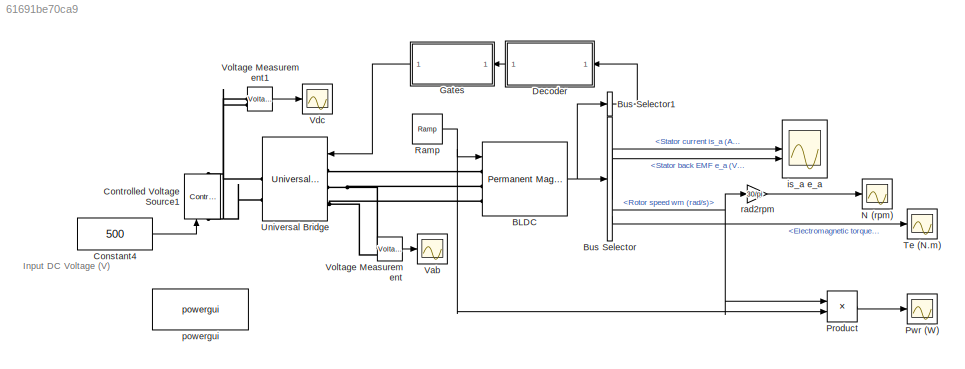
MODEL slx_61691be70ca9
KIND model
CONFIG AbsTol = 1e-6
CONFIG EnableMultiTasking = on
CONFIG FixedStep = Ts
CONFIG MaxStep = 1e-6
CONFIG MinStep = auto
CONFIG PreLoadFcn = assignin('base','Ts',[5e-6])
CONFIG RelTol = 1e-6
CONFIG SampleTimeConstraint = Unconstrained
CONFIG SolverName = ode4
CONFIG StartTime = 0
CONFIG StopTime = 1
BLOCK [Reference] BLDC  REF=spsPermanentMagnetSynchronousMachineLib/Permanent Magnet
Synchronous Machine
  LibrarySourceBlock = sps_lib/Electrical Machines/Permanent Magnet\nSynchronous Machine
  SourceBlock = spsPermanentMagnetSynchronousMachineLib/Permanent Magnet\nSynchronous Machine
  SourceType = Permanent Magnet Synchronous Machine
BLOCK [BusSelector] Bus Selector
  OutputSignals = Stator current is_a (A),Stator back EMF e_a (V),Rotor speed wm (rad/s),Electromagnetic torque Te (N*m)
BLOCK [BusSelector] Bus Selector1
  OutputAsBus = on
  OutputSignals = Hall effect signal h_a,Hall effect signal h_b,Hall effect signal h_c
BLOCK [Constant] Constant4
  Value = 500
BLOCK [Reference] Controlled Voltage Source1  REF=spsControlledVoltageSourceLib/Controlled Voltage Source
  LibrarySourceBlock = sps_lib/Sources/Controlled Voltage Source
  NameLocation = right
  SourceBlock = spsControlledVoltageSourceLib/Controlled Voltage Source
  SourceType = Controlled Voltage Source
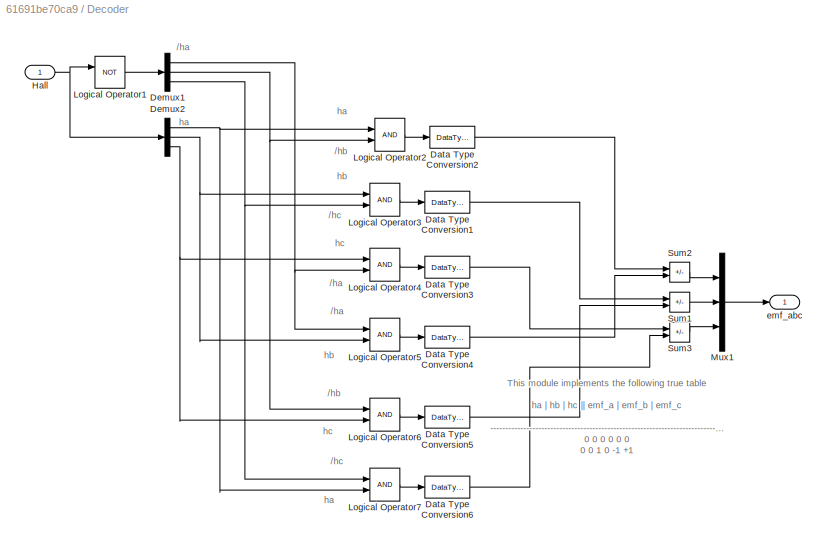
BLOCK [SubSystem] Decoder
  NameLocation = top
BLOCK [DataTypeConversion] Decoder/Data Type Conversion1
  RndMeth = Floor
  SaturateOnIntegerOverflow = off
BLOCK [DataTypeConversion] Decoder/Data Type Conversion2
  RndMeth = Floor
  SaturateOnIntegerOverflow = off
BLOCK [DataTypeConversion] Decoder/Data Type Conversion3
  RndMeth = Floor
  SaturateOnIntegerOverflow = off
BLOCK [DataTypeConversion] Decoder/Data Type Conversion4
  RndMeth = Floor
  SaturateOnIntegerOverflow = off
BLOCK [DataTypeConversion] Decoder/Data Type Conversion5
  RndMeth = Floor
  SaturateOnIntegerOverflow = off
BLOCK [DataTypeConversion] Decoder/Data Type Conversion6
  RndMeth = Floor
  SaturateOnIntegerOverflow = off
BLOCK [Demux] Decoder/Demux1
  Outputs = 3
BLOCK [Demux] Decoder/Demux2
  Outputs = 3
BLOCK [Inport] Decoder/Hall 
BLOCK [Logic] Decoder/Logical Operator1
  AllPortsSameDT = off
  Operator = NOT
  OutDataTypeStr = boolean
BLOCK [Logic] Decoder/Logical Operator2
  AllPortsSameDT = off
  OutDataTypeStr = boolean
BLOCK [Logic] Decoder/Logical Operator3
  AllPortsSameDT = off
  OutDataTypeStr = boolean
BLOCK [Logic] Decoder/Logical Operator4
  AllPortsSameDT = off
  OutDataTypeStr = boolean
BLOCK [Logic] Decoder/Logical Operator5
  AllPortsSameDT = off
  OutDataTypeStr = boolean
BLOCK [Logic] Decoder/Logical Operator6
  AllPortsSameDT = off
  OutDataTypeStr = boolean
BLOCK [Logic] Decoder/Logical Operator7
  AllPortsSameDT = off
  OutDataTypeStr = boolean
BLOCK [Mux] Decoder/Mux1
  DisplayOption = bar
  Inputs = 3
BLOCK [Sum] Decoder/Sum1
  IconShape = rectangular
  Inputs = +-
  OutDataTypeStr = double
BLOCK [Sum] Decoder/Sum2
  IconShape = rectangular
  Inputs = +-
  OutDataTypeStr = double
BLOCK [Sum] Decoder/Sum3
  IconShape = rectangular
  Inputs = +-
  OutDataTypeStr = double
BLOCK [Outport] Decoder/emf_abc
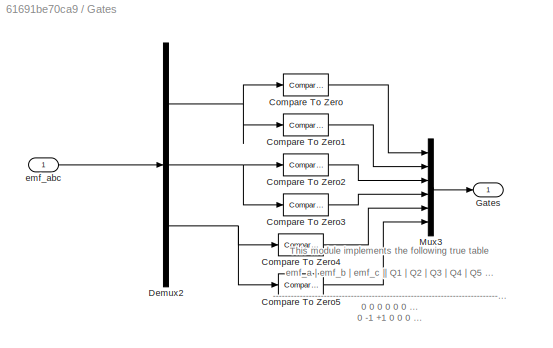
BLOCK [SubSystem] Gates
  NameLocation = top
BLOCK [Reference] Gates/Compare To Zero  REF=simulink/Logic and Bit
Operations/Compare
To Zero
  SourceBlock = simulink/Logic and Bit\nOperations/Compare\nTo Zero
  SourceType = Compare To Zero
BLOCK [Reference] Gates/Compare To Zero1  REF=simulink/Logic and Bit
Operations/Compare
To Zero
  SourceBlock = simulink/Logic and Bit\nOperations/Compare\nTo Zero
  SourceType = Compare To Zero
BLOCK [Reference] Gates/Compare To Zero2  REF=simulink/Logic and Bit
Operations/Compare
To Zero
  SourceBlock = simulink/Logic and Bit\nOperations/Compare\nTo Zero
  SourceType = Compare To Zero
BLOCK [Reference] Gates/Compare To Zero3  REF=simulink/Logic and Bit
Operations/Compare
To Zero
  SourceBlock = simulink/Logic and Bit\nOperations/Compare\nTo Zero
  SourceType = Compare To Zero
BLOCK [Reference] Gates/Compare To Zero4  REF=simulink/Logic and Bit
Operations/Compare
To Zero
  SourceBlock = simulink/Logic and Bit\nOperations/Compare\nTo Zero
  SourceType = Compare To Zero
BLOCK [Reference] Gates/Compare To Zero5  REF=simulink/Logic and Bit
Operations/Compare
To Zero
  SourceBlock = simulink/Logic and Bit\nOperations/Compare\nTo Zero
  SourceType = Compare To Zero
BLOCK [Demux] Gates/Demux2
  Outputs = 3
BLOCK [Outport] Gates/Gates
BLOCK [Mux] Gates/Mux3
  DisplayOption = bar
  Inputs = 6
BLOCK [Inport] Gates/emf_abc 
BLOCK [Scope] N (rpm)
  Floating = off
  NameLocation = top
  NumInputPorts = 1
  ScopeSpecificationString = Simulink.scopes.TimeScopeBlockCfg('CurrentConfiguration', extmgr.ConfigurationSet(extmgr.Configuration('Core','General UI',true,'FigureColor',[0.8 0.8 0.8]),extmgr.Configuration('Core','Source UI',true),extmgr.Configuration('Sources','WiredSimulink',true,'DataLogging',true,'DataLoggingVariableName','N','DataLoggingSaveFormat','StructureWithTime','DataLoggingDecimation','1','DataLoggingDecimateData...<+2769ch>
BLOCK [Product] Product
BLOCK [Scope] Pwr (W)
  Floating = off
  NumInputPorts = 1
  ScopeSpecificationString = Simulink.scopes.TimeScopeBlockCfg('CurrentConfiguration', extmgr.ConfigurationSet(extmgr.Configuration('Core','General UI',true,'FigureColor',[0.831372549019608 0.815686274509804 0.784313725490196]),extmgr.Configuration('Core','Source UI',true),extmgr.Configuration('Sources','WiredSimulink',true,'DataLogging',true,'DataLoggingVariableName','Pwr','DataLoggingSaveFormat','StructureWithTime','DataLog...<+2823ch>
BLOCK [Reference] Ramp  REF=simulink/Sources/Ramp
  SourceBlock = simulink/Sources/Ramp
  SourceType = Ramp
BLOCK [Scope] Te (N.m)
  Floating = off
  NumInputPorts = 1
  ScopeSpecificationString = Simulink.scopes.TimeScopeBlockCfg('CurrentConfiguration', extmgr.ConfigurationSet(extmgr.Configuration('Core','General UI',true),extmgr.Configuration('Core','Source UI',true),extmgr.Configuration('Sources','WiredSimulink',true,'DataLogging',true,'DataLoggingVariableName','N1','DataLoggingSaveFormat','StructureWithTime','DataLoggingDecimation','1','DataLoggingDecimateData',true),extmgr.Configuratio...<+1732ch>
BLOCK [Reference] Universal Bridge  REF=spsUniversalBridgeLib/Universal Bridge
  LibrarySourceBlock = sps_lib/Power Electronics/Universal Bridge
  SourceBlock = spsUniversalBridgeLib/Universal Bridge
  SourceType = Universal Bridge
BLOCK [Scope] Vab
  Floating = off
  NumInputPorts = 1
  ScopeSpecificationString = Simulink.scopes.TimeScopeBlockCfg('CurrentConfiguration', extmgr.ConfigurationSet(extmgr.Configuration('Core','General UI',true),extmgr.Configuration('Core','Source UI',true),extmgr.Configuration('Sources','WiredSimulink',true,'DataLoggingVariableName','ScopeData4','DataLoggingSaveFormat','Structure','DataLoggingDecimation','1','DataLoggingDecimateData',true),extmgr.Configuration('Visuals','Time D...<+1699ch>
BLOCK [Scope] Vdc
  Floating = off
  NumInputPorts = 1
  ScopeSpecificationString = Simulink.scopes.TimeScopeBlockCfg('CurrentConfiguration', extmgr.ConfigurationSet(extmgr.Configuration('Core','General UI',true),extmgr.Configuration('Core','Source UI',true),extmgr.Configuration('Sources','WiredSimulink',true,'DataLoggingVariableName','ScopeData3','DataLoggingSaveFormat','Structure','DataLoggingDecimation','1','DataLoggingDecimateData',true),extmgr.Configuration('Visuals','Time D...<+1697ch>
BLOCK [Reference] Voltage Measurement  REF=spsVoltageMeasurementLib/Voltage Measurement
  LibrarySourceBlock = sps_lib/Sensors and Measurements/Voltage Measurement
  SourceBlock = spsVoltageMeasurementLib/Voltage Measurement
  SourceType = Voltage Measurement
BLOCK [Reference] Voltage Measurement1  REF=spsVoltageMeasurementLib/Voltage Measurement
  LibrarySourceBlock = sps_lib/Sensors and Measurements/Voltage Measurement
  SourceBlock = spsVoltageMeasurementLib/Voltage Measurement
  SourceType = Voltage Measurement
BLOCK [Scope] is_a e_a
  Floating = off
  NameLocation = top
  NumInputPorts = 2
  ScopeSpecificationString = Simulink.scopes.TimeScopeBlockCfg('CurrentConfiguration', extmgr.ConfigurationSet(extmgr.Configuration('Core','General UI',true),extmgr.Configuration('Core','Source UI',true),extmgr.Configuration('Sources','WiredSimulink',true,'DataLogging',true,'DataLoggingVariableName','IE','DataLoggingSaveFormat','StructureWithTime','DataLoggingDecimation','1','DataLoggingDecimateData',true),extmgr.Configuratio...<+2454ch>
BLOCK [Reference] powergui  REF=spspowerguiLib/powergui
  LibrarySourceBlock = sps_lib/powergui
  Priority = 2
  SourceBlock = spspowerguiLib/powergui
  SourceType = PSB option menu block
BLOCK [Gain] rad2rpm
  Gain = 30/pi
ANNOTATION (root): Input DC Voltage (V)
ANNOTATION Decoder: /ha
ANNOTATION Decoder: /hb
ANNOTATION Decoder: /hc
ANNOTATION Decoder: This module implements the following true table ha | hb | hc || emf_a | emf_b | emf_c -------------------------------------------------------------------------------- 0 0 0 0 0 0 0 0 1 0 -1 +1 0 1 0 -1 +1 0 0 1 1 -1 0 +1 1 0 0 +1 0 -1 1 0 1 +1 -1 0 1 1 0 0 +1 -1 1 1 1 0 0 0
ANNOTATION Decoder: ha
ANNOTATION Decoder: hb
ANNOTATION Decoder: hc
ANNOTATION Gates: This module implements the following true table emf_a | emf_b | emf_c || Q1 | Q2 | Q3 | Q4 | Q5 | Q6 ------------------------------------------------------------------------------------------------------------------ 0 0 0 0 0 0 0 0 0 0 -1 +1 0 0 0 1 1 0 -1 +1 0 0 1 1 0 0 0 -1 0 +1 0 1 0 0 1 0 +1 0 -1 1 0 0 0 0 1 +1 -1 0 1 0 0 1 0 0 0 +1 -1 0 0 1 0 0 1 0 0 0 0 0 0 0 0 0
NET BLDC:1 -> Bus Selector1:1, Bus Selector:1
LINE Bus Selector1:1 -> Decoder:1
LINE Bus Selector:1 -> is_a e_a:1
LINE Bus Selector:2 -> is_a e_a:2
NET Bus Selector:3 -> Product:1, rad2rpm:1
LINE Bus Selector:4 -> Te (N.m):1
LINE Constant4:1 -> Controlled Voltage Source1:1
LINE Decoder/Data Type Conversion1:1 -> Decoder/Sum1:1
LINE Decoder/Data Type Conversion2:1 -> Decoder/Sum2:1
LINE Decoder/Data Type Conversion3:1 -> Decoder/Sum3:1
LINE Decoder/Data Type Conversion4:1 -> Decoder/Sum2:2
LINE Decoder/Data Type Conversion5:1 -> Decoder/Sum1:2
LINE Decoder/Data Type Conversion6:1 -> Decoder/Sum3:2
NET Decoder/Demux1:1 -> Decoder/Logical Operator4:2, Decoder/Logical Operator5:1
NET Decoder/Demux1:2 -> Decoder/Logical Operator2:2, Decoder/Logical Operator6:1
NET Decoder/Demux1:3 -> Decoder/Logical Operator3:2, Decoder/Logical Operator7:1
NET Decoder/Demux2:1 -> Decoder/Logical Operator2:1, Decoder/Logical Operator7:2
NET Decoder/Demux2:2 -> Decoder/Logical Operator3:1, Decoder/Logical Operator5:2
NET Decoder/Demux2:3 -> Decoder/Logical Operator4:1, Decoder/Logical Operator6:2
NET Decoder/Hall :1 -> Decoder/Demux2:1, Decoder/Logical Operator1:1
LINE Decoder/Logical Operator1:1 -> Decoder/Demux1:1
LINE Decoder/Logical Operator2:1 -> Decoder/Data Type Conversion2:1
LINE Decoder/Logical Operator3:1 -> Decoder/Data Type Conversion1:1
LINE Decoder/Logical Operator4:1 -> Decoder/Data Type Conversion3:1
LINE Decoder/Logical Operator5:1 -> Decoder/Data Type Conversion4:1
LINE Decoder/Logical Operator6:1 -> Decoder/Data Type Conversion5:1
LINE Decoder/Logical Operator7:1 -> Decoder/Data Type Conversion6:1
LINE Decoder/Mux1:1 -> Decoder/emf_abc:1
LINE Decoder/Sum1:1 -> Decoder/Mux1:2
LINE Decoder/Sum2:1 -> Decoder/Mux1:1
LINE Decoder/Sum3:1 -> Decoder/Mux1:3
LINE Decoder:1 -> Gates:1
LINE Gates/Compare To Zero1:1 -> Gates/Mux3:2
LINE Gates/Compare To Zero2:1 -> Gates/Mux3:3
LINE Gates/Compare To Zero3:1 -> Gates/Mux3:4
LINE Gates/Compare To Zero4:1 -> Gates/Mux3:5
LINE Gates/Compare To Zero5:1 -> Gates/Mux3:6
LINE Gates/Compare To Zero:1 -> Gates/Mux3:1
NET Gates/Demux2:1 -> Gates/Compare To Zero1:1, Gates/Compare To Zero:1
NET Gates/Demux2:2 -> Gates/Compare To Zero2:1, Gates/Compare To Zero3:1
NET Gates/Demux2:3 -> Gates/Compare To Zero4:1, Gates/Compare To Zero5:1
LINE Gates/Mux3:1 -> Gates/Gates:1
LINE Gates/emf_abc :1 -> Gates/Demux2:1
LINE Gates:1 -> Universal Bridge:1
LINE Product:1 -> Pwr (W):1
NET Ramp:1 -> BLDC:1, Product:2
LINE Voltage Measurement1:1 -> Vdc:1
LINE Voltage Measurement:1 -> Vab:1
LINE rad2rpm:1 -> N (rpm):1
PLINE BLDC:LConn1 -- Universal Bridge:LConn1
PNET net1: BLDC:LConn2 -- Universal Bridge:LConn2 -- Voltage Measurement:LConn1
PNET net2: BLDC:LConn3 -- Universal Bridge:LConn3 -- Voltage Measurement:LConn2
PNET net3: Controlled Voltage Source1:LConn1 -- Universal Bridge:RConn2 -- Voltage Measurement1:LConn2
PNET net4: Controlled Voltage Source1:RConn1 -- Universal Bridge:RConn1 -- Voltage Measurement1:LConn1
note: NET lines group one-source signal fan-out (src -> all destinations, sorted); 1:1 wires keep LINE; PNET lines group multi-terminal physical nets as a canonical sorted terminal list (undirected conserving connections); 2-terminal nets keep the pairwise PLINE form
